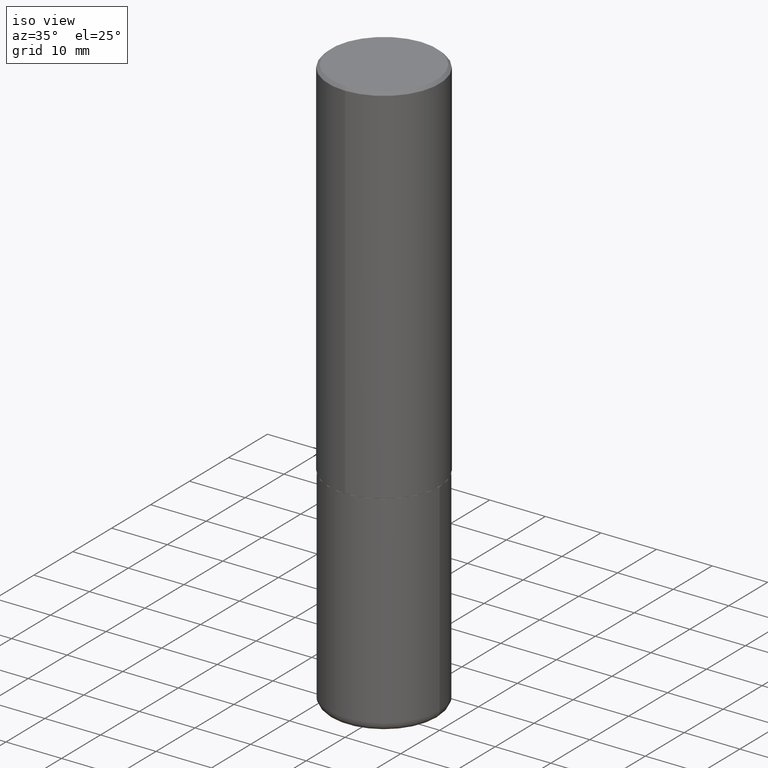
[diagram: clean part render]
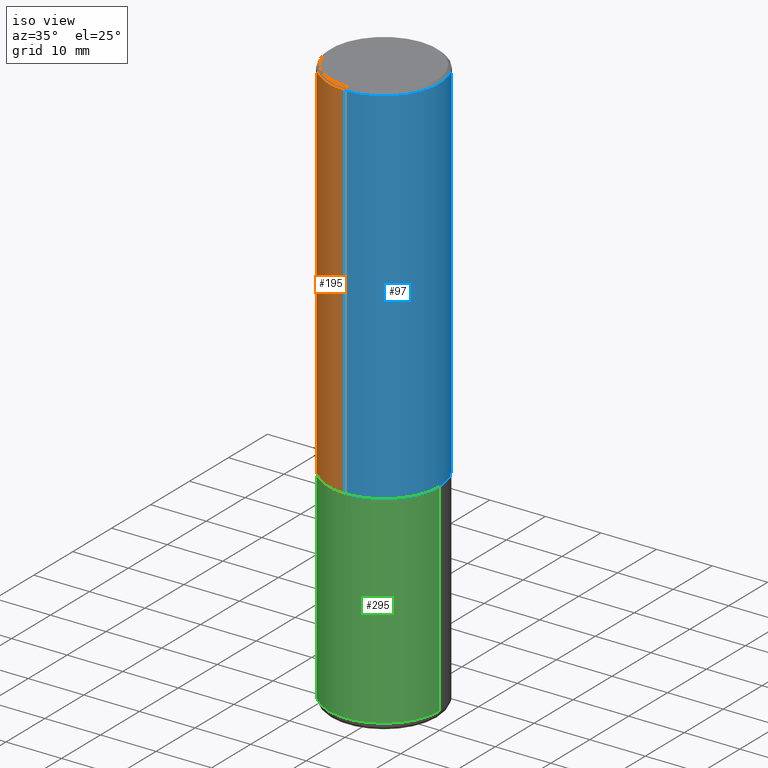
[diagram: same view with three faces highlighted in distinct colors, each labeled with its STEP entity id]
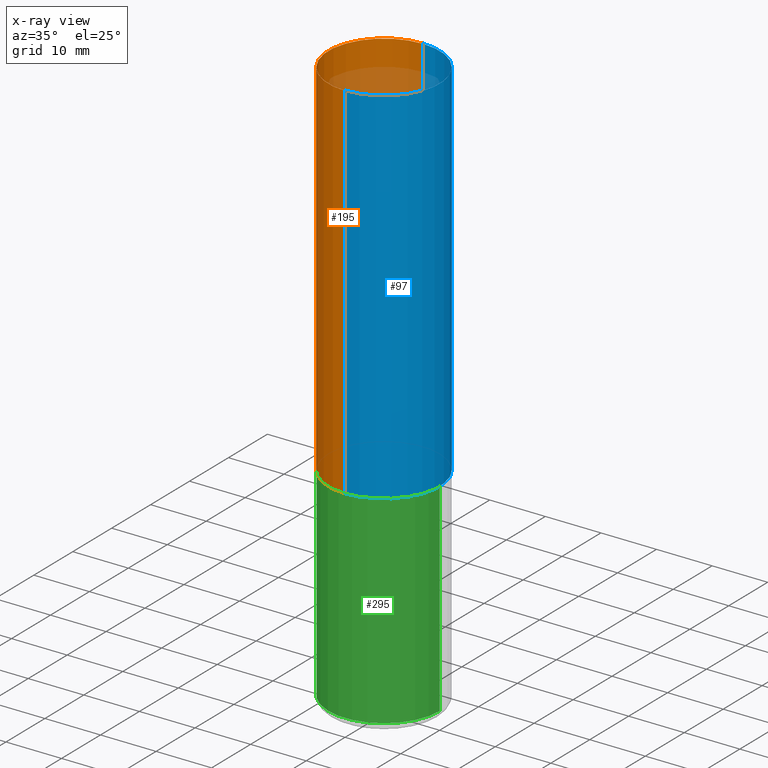
[diagram: x-ray of the same camera — body ghosted, the three highlighted faces saturated]
A machine part, iso view with three faces highlighted in distinct colors.
The next image is the same camera in x-ray (body ghosted, the three faces saturated) — at least one of them is partly hidden behind the body in this view.
Their STEP definitions:

[orange] entity #195 — the highlighted cylindrical surface (partial cylindrical patch) has radius 10 mm, axis along (-0, 0, 1).
#25 = CIRCLE ( 'NONE', #381, 0.3937000000000002720 ) ;
#35 = VERTEX_POINT ( 'NONE', #50 ) ;
#39 = CARTESIAN_POINT ( 'NONE',  ( 2.797406750687515181E-15, 0.3937000000000001609, -1.374827359954621742E-15 ) ) ;
#47 = DIRECTION ( 'NONE',  ( -2.445058808808776111E-29, 3.492068478421695064E-15, 1.000000000000000000 ) ) ;
#48 = CARTESIAN_POINT ( 'NONE',  ( -2.749192406205084005E-15, -0.3937000000000001609, 1.374827359954621742E-15 ) ) ;
#50 = CARTESIAN_POINT ( 'NONE',  ( -2.749192406205021291E-15, -0.3937000000000093758, -2.597399999999999043 ) ) ;
#61 = AXIS2_PLACEMENT_3D ( 'NONE', #199, #261, #393 ) ;
#63 = FACE_OUTER_BOUND ( 'NONE', #191, .T. ) ;
#133 = VECTOR ( 'NONE', #47, 39.37007874015748143 ) ;
#136 = LINE ( 'NONE', #39, #133 ) ;
#137 = VECTOR ( 'NONE', #329, 39.37007874015748143 ) ;
#146 = CARTESIAN_POINT ( 'NONE',  ( 2.797406750687547524E-15, 0.3936999999999912236, -2.597400000000002152 ) ) ;
#157 = VERTEX_POINT ( 'NONE', #146 ) ;
#171 = CARTESIAN_POINT ( 'NONE',  ( 2.749192406205083217E-15, 0.3936999999999999389, -0.02000000000000146105 ) ) ;
#191 = EDGE_LOOP ( 'NONE', ( #290, #268, #403, #218 ) ) ;
#195 = ADVANCED_FACE ( 'NONE', ( #63 ), #287, .T. ) ;
#199 = CARTESIAN_POINT ( 'NONE',  ( 4.890117617617573732E-31, -6.984136956843418330E-17, -0.02000000000000008715 ) ) ;
#218 = ORIENTED_EDGE ( 'NONE', *, *, #407, .F. ) ;
#235 = CIRCLE ( 'NONE', #61, 0.3937000000000000499 ) ;
#259 = CARTESIAN_POINT ( 'NONE',  ( 6.350795749999916474E-29, -9.070298665852512644E-15, -2.597400000000000375 ) ) ;
#261 = DIRECTION ( 'NONE',  ( -2.445058808808776392E-29, 3.492068478421694670E-15, 1.000000000000000000 ) ) ;
#265 = EDGE_CURVE ( 'NONE', #35, #269, #333, .T. ) ;
#268 = ORIENTED_EDGE ( 'NONE', *, *, #402, .T. ) ;
#269 = VERTEX_POINT ( 'NONE', #297 ) ;
#271 = AXIS2_PLACEMENT_3D ( 'NONE', #379, #362, #317 ) ;
#287 = CYLINDRICAL_SURFACE ( 'NONE', #271, 0.3937000000000001609 ) ;
#290 = ORIENTED_EDGE ( 'NONE', *, *, #320, .F. ) ;
#297 = CARTESIAN_POINT ( 'NONE',  ( -2.700978061722651252E-15, -0.3937000000000001054, -0.01999999999999870978 ) ) ;
#299 = DIRECTION ( 'NONE',  ( -2.445058808808776392E-29, 3.492068478421694670E-15, 1.000000000000000000 ) ) ;
#317 = DIRECTION ( 'NONE',  ( -6.982962677686265922E-15, -1.000000000000000000, 3.492068478421694670E-15 ) ) ;
#320 = EDGE_CURVE ( 'NONE', #157, #322, #136, .T. ) ;
#322 = VERTEX_POINT ( 'NONE', #171 ) ;
#329 = DIRECTION ( 'NONE',  ( -2.445058808808776111E-29, 3.492068478421695064E-15, 1.000000000000000000 ) ) ;
#333 = LINE ( 'NONE', #48, #137 ) ;
#362 = DIRECTION ( 'NONE',  ( -2.445058808808776392E-29, 3.492068478421694670E-15, 1.000000000000000000 ) ) ;
#379 = CARTESIAN_POINT ( 'NONE',  ( 0.000000000000000000, 0.000000000000000000, 0.000000000000000000 ) ) ;
#381 = AXIS2_PLACEMENT_3D ( 'NONE', #259, #299, #391 ) ;
#391 = DIRECTION ( 'NONE',  ( -6.982962677686265922E-15, -1.000000000000000000, 4.163344669033672479E-15 ) ) ;
#393 = DIRECTION ( 'NONE',  ( -6.982962677686265133E-15, -1.000000000000000000, 3.491137977679279424E-15 ) ) ;
#402 = EDGE_CURVE ( 'NONE', #157, #35, #25, .T. ) ;
#403 = ORIENTED_EDGE ( 'NONE', *, *, #265, .T. ) ;
#407 = EDGE_CURVE ( 'NONE', #322, #269, #235, .T. ) ;

[blue] entity #97 — the highlighted cylindrical surface (partial cylindrical patch) has radius 10 mm, axis along (-0, 0, 1).
#8 = DIRECTION ( 'NONE',  ( -6.982962677686265133E-15, -1.000000000000000000, 3.491137977679279424E-15 ) ) ;
#15 = DIRECTION ( 'NONE',  ( -2.445058808808776392E-29, 3.492068478421694670E-15, 1.000000000000000000 ) ) ;
#24 = AXIS2_PLACEMENT_3D ( 'NONE', #184, #240, #151 ) ;
#35 = VERTEX_POINT ( 'NONE', #50 ) ;
#39 = CARTESIAN_POINT ( 'NONE',  ( 2.797406750687515181E-15, 0.3937000000000001609, -1.374827359954621742E-15 ) ) ;
#43 = AXIS2_PLACEMENT_3D ( 'NONE', #377, #15, #276 ) ;
#44 = CIRCLE ( 'NONE', #54, 0.3937000000000000499 ) ;
#47 = DIRECTION ( 'NONE',  ( -2.445058808808776111E-29, 3.492068478421695064E-15, 1.000000000000000000 ) ) ;
#48 = CARTESIAN_POINT ( 'NONE',  ( -2.749192406205084005E-15, -0.3937000000000001609, 1.374827359954621742E-15 ) ) ;
#50 = CARTESIAN_POINT ( 'NONE',  ( -2.749192406205021291E-15, -0.3937000000000093758, -2.597399999999999043 ) ) ;
#54 = AXIS2_PLACEMENT_3D ( 'NONE', #99, #164, #8 ) ;
#97 = ADVANCED_FACE ( 'NONE', ( #374 ), #215, .T. ) ;
#99 = CARTESIAN_POINT ( 'NONE',  ( 4.890117617617573732E-31, -6.984136956843418330E-17, -0.02000000000000008715 ) ) ;
#133 = VECTOR ( 'NONE', #47, 39.37007874015748143 ) ;
#136 = LINE ( 'NONE', #39, #133 ) ;
#137 = VECTOR ( 'NONE', #329, 39.37007874015748143 ) ;
#146 = CARTESIAN_POINT ( 'NONE',  ( 2.797406750687547524E-15, 0.3936999999999912236, -2.597400000000002152 ) ) ;
#150 = EDGE_LOOP ( 'NONE', ( #194, #270, #326, #237 ) ) ;
#151 = DIRECTION ( 'NONE',  ( -6.982962677686265922E-15, -1.000000000000000000, 4.163344669033672479E-15 ) ) ;
#157 = VERTEX_POINT ( 'NONE', #146 ) ;
#164 = DIRECTION ( 'NONE',  ( -2.445058808808776392E-29, 3.492068478421694670E-15, 1.000000000000000000 ) ) ;
#167 = EDGE_CURVE ( 'NONE', #35, #157, #330, .T. ) ;
#171 = CARTESIAN_POINT ( 'NONE',  ( 2.749192406205083217E-15, 0.3936999999999999389, -0.02000000000000146105 ) ) ;
#184 = CARTESIAN_POINT ( 'NONE',  ( 6.350795749999916474E-29, -9.070298665852512644E-15, -2.597400000000000375 ) ) ;
#194 = ORIENTED_EDGE ( 'NONE', *, *, #167, .T. ) ;
#215 = CYLINDRICAL_SURFACE ( 'NONE', #43, 0.3937000000000001609 ) ;
#237 = ORIENTED_EDGE ( 'NONE', *, *, #265, .F. ) ;
#240 = DIRECTION ( 'NONE',  ( -2.445058808808776392E-29, 3.492068478421694670E-15, 1.000000000000000000 ) ) ;
#265 = EDGE_CURVE ( 'NONE', #35, #269, #333, .T. ) ;
#269 = VERTEX_POINT ( 'NONE', #297 ) ;
#270 = ORIENTED_EDGE ( 'NONE', *, *, #320, .T. ) ;
#276 = DIRECTION ( 'NONE',  ( -6.982962677686265922E-15, -1.000000000000000000, 3.492068478421694670E-15 ) ) ;
#297 = CARTESIAN_POINT ( 'NONE',  ( -2.700978061722651252E-15, -0.3937000000000001054, -0.01999999999999870978 ) ) ;
#320 = EDGE_CURVE ( 'NONE', #157, #322, #136, .T. ) ;
#322 = VERTEX_POINT ( 'NONE', #171 ) ;
#326 = ORIENTED_EDGE ( 'NONE', *, *, #334, .F. ) ;
#329 = DIRECTION ( 'NONE',  ( -2.445058808808776111E-29, 3.492068478421695064E-15, 1.000000000000000000 ) ) ;
#330 = CIRCLE ( 'NONE', #24, 0.3937000000000002720 ) ;
#333 = LINE ( 'NONE', #48, #137 ) ;
#334 = EDGE_CURVE ( 'NONE', #269, #322, #44, .T. ) ;
#374 = FACE_OUTER_BOUND ( 'NONE', #150, .T. ) ;
#377 = CARTESIAN_POINT ( 'NONE',  ( 0.000000000000000000, 0.000000000000000000, 0.000000000000000000 ) ) ;

[green] entity #295 — the highlighted cylindrical surface (partial cylindrical patch) has radius 10 mm, axis along (-0, 0, 1).
#5 = AXIS2_PLACEMENT_3D ( 'NONE', #401, #110, #291 ) ;
#33 = ORIENTED_EDGE ( 'NONE', *, *, #273, .F. ) ;
#37 = EDGE_CURVE ( 'NONE', #176, #387, #296, .T. ) ;
#59 = ORIENTED_EDGE ( 'NONE', *, *, #224, .T. ) ;
#71 = DIRECTION ( 'NONE',  ( -2.445468806185136597E-29, 3.491481338843145583E-15, 1.000000000000000000 ) ) ;
#86 = CARTESIAN_POINT ( 'NONE',  ( -0.3937000000000000499, 2.797406750687514786E-15, -1.936584745033356735E-29 ) ) ;
#89 = VECTOR ( 'NONE', #183, 39.37007874015748143 ) ;
#100 = CARTESIAN_POINT ( 'NONE',  ( 0.3937000000000000499, -1.182145751705511584E-14, -2.598400000000000265 ) ) ;
#105 = VERTEX_POINT ( 'NONE', #272 ) ;
#106 = ORIENTED_EDGE ( 'NONE', *, *, #37, .T. ) ;
#110 = DIRECTION ( 'NONE',  ( -2.445468806185136597E-29, 3.491481338843145583E-15, 1.000000000000000000 ) ) ;
#132 = CARTESIAN_POINT ( 'NONE',  ( 0.3936999999999999389, -1.683871620097271431E-14, -4.035400000000000098 ) ) ;
#160 = EDGE_CURVE ( 'NONE', #176, #105, #278, .T. ) ;
#161 = CYLINDRICAL_SURFACE ( 'NONE', #355, 0.3937000000000000499 ) ;
#173 = CIRCLE ( 'NONE', #258, 0.3937000000000000499 ) ;
#176 = VERTEX_POINT ( 'NONE', #177 ) ;
#177 = CARTESIAN_POINT ( 'NONE',  ( -0.3936999999999999389, -1.129211704408011394E-14, -4.035400000000000098 ) ) ;
#183 = DIRECTION ( 'NONE',  ( -2.445468806185136877E-29, 3.491481338843145188E-15, 1.000000000000000000 ) ) ;
#205 = CARTESIAN_POINT ( 'NONE',  ( 6.354306145991459756E-29, -9.072265110850031044E-15, -2.598400000000000265 ) ) ;
#224 = EDGE_CURVE ( 'NONE', #387, #316, #412, .T. ) ;
#232 = CARTESIAN_POINT ( 'NONE',  ( 0.3937000000000000499, -2.749192406205083217E-15, 1.919750796630860172E-29 ) ) ;
#234 = DIRECTION ( 'NONE',  ( 1.000000000000000000, -6.982962677686265922E-15, 4.876176775795935793E-29 ) ) ;
#236 = DIRECTION ( 'NONE',  ( -2.445468806185136597E-29, 3.491481338843145583E-15, 1.000000000000000000 ) ) ;
#250 = ORIENTED_EDGE ( 'NONE', *, *, #160, .F. ) ;
#258 = AXIS2_PLACEMENT_3D ( 'NONE', #205, #236, #399 ) ;
#272 = CARTESIAN_POINT ( 'NONE',  ( -0.3937000000000000499, -8.783487702121316283E-15, -2.598400000000000265 ) ) ;
#273 = EDGE_CURVE ( 'NONE', #105, #316, #173, .T. ) ;
#278 = LINE ( 'NONE', #86, #389 ) ;
#279 = DIRECTION ( 'NONE',  ( -2.445468806185136877E-29, 3.491481338843145188E-15, 1.000000000000000000 ) ) ;
#291 = DIRECTION ( 'NONE',  ( 1.000000000000000000, -6.982962677686267499E-15, 0.000000000000000000 ) ) ;
#295 = ADVANCED_FACE ( 'NONE', ( #392 ), #161, .T. ) ;
#296 = CIRCLE ( 'NONE', #5, 0.3937000000000000499 ) ;
#316 = VERTEX_POINT ( 'NONE', #100 ) ;
#328 = EDGE_LOOP ( 'NONE', ( #250, #106, #59, #33 ) ) ;
#335 = CARTESIAN_POINT ( 'NONE',  ( 0.000000000000000000, 0.000000000000000000, 0.000000000000000000 ) ) ;
#355 = AXIS2_PLACEMENT_3D ( 'NONE', #335, #71, #234 ) ;
#387 = VERTEX_POINT ( 'NONE', #132 ) ;
#389 = VECTOR ( 'NONE', #279, 39.37007874015748143 ) ;
#392 = FACE_OUTER_BOUND ( 'NONE', #328, .T. ) ;
#399 = DIRECTION ( 'NONE',  ( 1.000000000000000000, -6.982962677686267499E-15, 0.000000000000000000 ) ) ;
#401 = CARTESIAN_POINT ( 'NONE',  ( 9.868444820479501934E-29, -1.408952379476762952E-14, -4.035400000000000098 ) ) ;
#412 = LINE ( 'NONE', #232, #89 ) ;